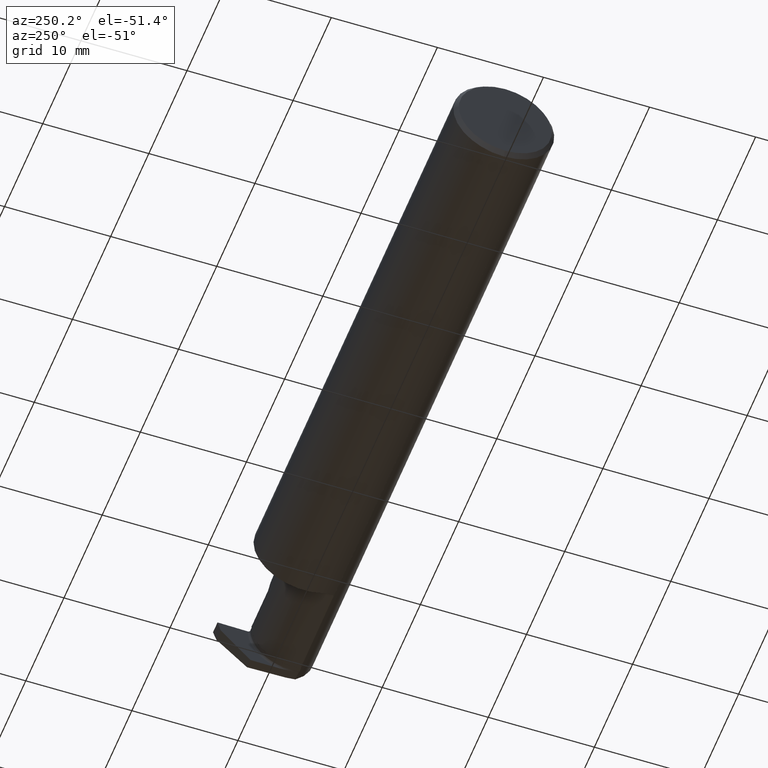
[diagram: clean part render]
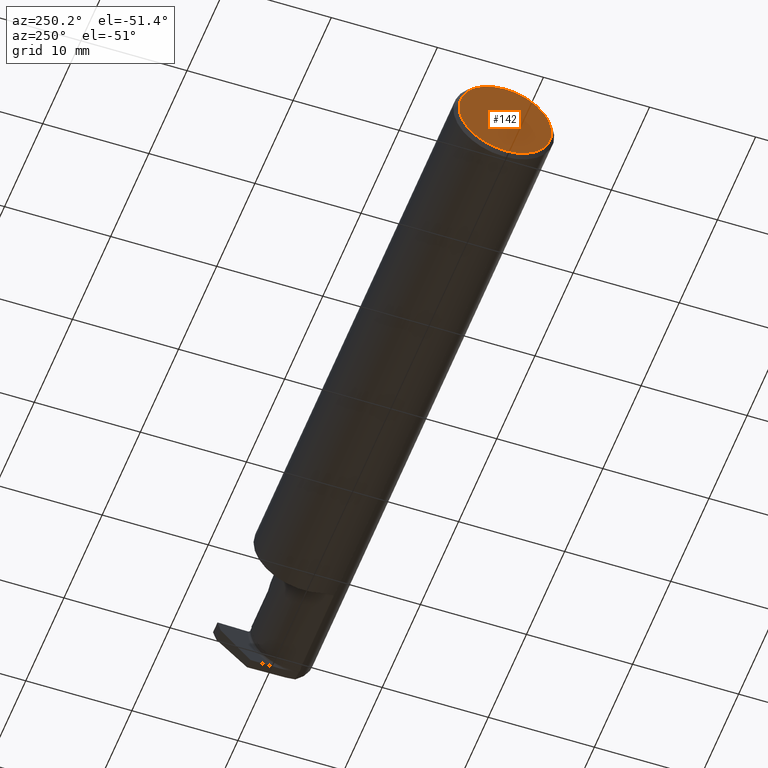
[diagram: same view with one face highlighted and labeled with its STEP entity id]
A machine part, auxiliary view. The second image highlights one B-rep face of the part: STEP entity #142.
In plain terms, the highlighted planar face has unit normal (1, 0, 0).
Its self-contained STEP definition (entity closure, byte-faithful):
#79 = EDGE_CURVE ( 'NONE', #175, #626, #1023, .T. ) ;
#142 = ADVANCED_FACE ( 'NONE', ( #681 ), #955, .F. ) ;
#175 = VERTEX_POINT ( 'NONE', #939 ) ;
#218 = CIRCLE ( 'NONE', #1005, 0.1723499999999999754 ) ;
#279 = EDGE_LOOP ( 'NONE', ( #582, #338 ) ) ;
#338 = ORIENTED_EDGE ( 'NONE', *, *, #869, .T. ) ;
#384 = DIRECTION ( 'NONE',  ( 0.000000000000000000, 0.000000000000000000, -1.000000000000000000 ) ) ;
#439 = CARTESIAN_POINT ( 'NONE',  ( 0.000000000000000000, 2.202527268266524596E-17, 0.1723499999999999754 ) ) ;
#459 = DIRECTION ( 'NONE',  ( 1.000000000000000000, 0.000000000000000000, 0.000000000000000000 ) ) ;
#516 = DIRECTION ( 'NONE',  ( -1.000000000000000000, -0.000000000000000000, -0.000000000000000000 ) ) ;
#568 = AXIS2_PLACEMENT_3D ( 'NONE', #850, #516, #753 ) ;
#582 = ORIENTED_EDGE ( 'NONE', *, *, #79, .T. ) ;
#626 = VERTEX_POINT ( 'NONE', #439 ) ;
#681 = FACE_OUTER_BOUND ( 'NONE', #279, .T. ) ;
#687 = AXIS2_PLACEMENT_3D ( 'NONE', #1022, #459, #384 ) ;
#745 = DIRECTION ( 'NONE',  ( -1.000000000000000000, -0.000000000000000000, -0.000000000000000000 ) ) ;
#753 = DIRECTION ( 'NONE',  ( 0.000000000000000000, 0.000000000000000000, 1.000000000000000000 ) ) ;
#813 = CARTESIAN_POINT ( 'NONE',  ( 0.000000000000000000, 0.000000000000000000, 0.000000000000000000 ) ) ;
#817 = DIRECTION ( 'NONE',  ( 0.000000000000000000, 0.000000000000000000, 1.000000000000000000 ) ) ;
#850 = CARTESIAN_POINT ( 'NONE',  ( 0.000000000000000000, 0.000000000000000000, 0.000000000000000000 ) ) ;
#869 = EDGE_CURVE ( 'NONE', #626, #175, #218, .T. ) ;
#939 = CARTESIAN_POINT ( 'NONE',  ( 0.000000000000000000, 0.000000000000000000, -0.1723499999999999754 ) ) ;
#955 = PLANE ( 'NONE',  #687 ) ;
#1005 = AXIS2_PLACEMENT_3D ( 'NONE', #813, #745, #817 ) ;
#1022 = CARTESIAN_POINT ( 'NONE',  ( 0.000000000000000000, 0.000000000000000000, 0.000000000000000000 ) ) ;
#1023 = CIRCLE ( 'NONE', #568, 0.1723499999999999754 ) ;